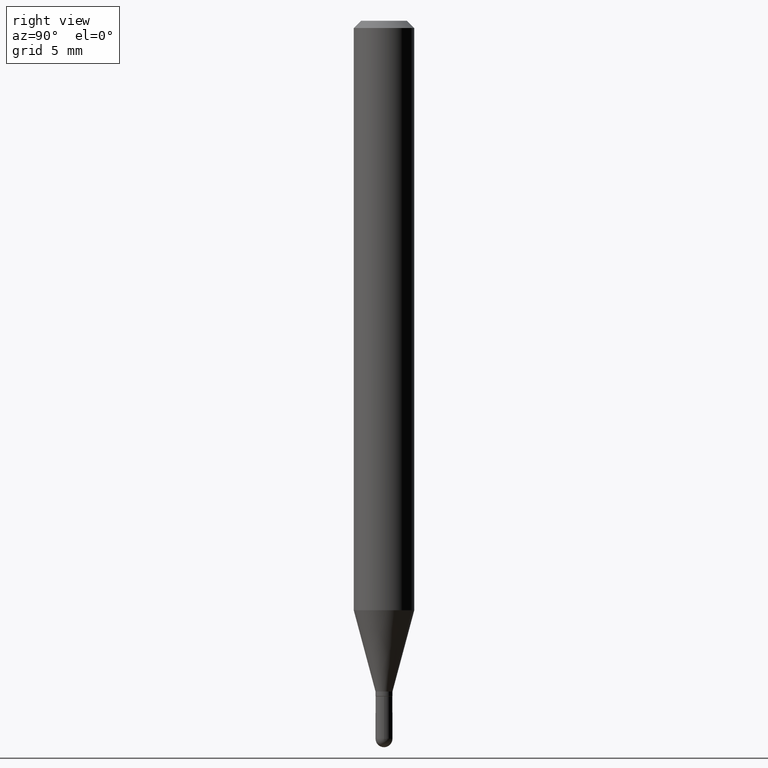
[diagram: clean part render]
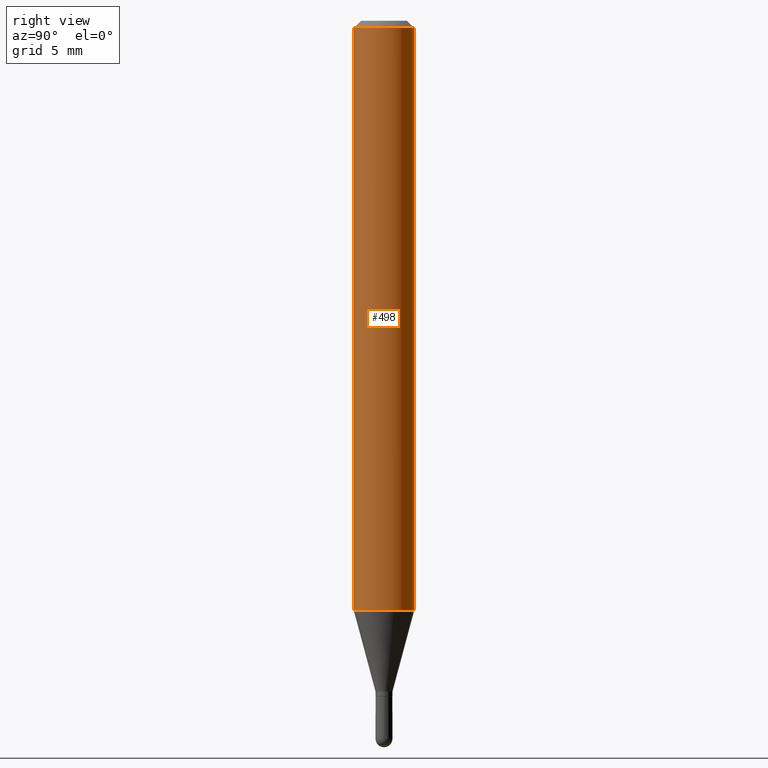
[diagram: same view with one face highlighted and labeled with its STEP entity id]
A machine part, right view. The second image highlights one B-rep face of the part: STEP entity #498.
In plain terms, the highlighted cylindrical surface (edge-blend (fillet) strip) has radius 1.5875 mm, axis along (-0, 0, 1).
Its self-contained STEP definition (entity closure, byte-faithful):
#4 = LINE ( 'NONE', #283, #213 ) ;
#11 = DIRECTION ( 'NONE',  ( -2.445470767023835515E-29, 3.491478530810524954E-15, 1.000000000000000000 ) ) ;
#18 = EDGE_LOOP ( 'NONE', ( #401, #287, #233, #82 ) ) ;
#26 = CARTESIAN_POINT ( 'NONE',  ( 3.668206150535694734E-31, -5.237217796215704281E-17, -0.01499999999999976179 ) ) ;
#29 = AXIS2_PLACEMENT_3D ( 'NONE', #399, #11, #494 ) ;
#32 = EDGE_CURVE ( 'NONE', #159, #374, #44, .T. ) ;
#38 = CARTESIAN_POINT ( 'NONE',  ( -4.364351673553916201E-16, -0.06250000000000000000, 2.182174081756577850E-16 ) ) ;
#44 = CIRCLE ( 'NONE', #144, 0.06250000000000000000 ) ;
#52 = EDGE_CURVE ( 'NONE', #412, #210, #445, .T. ) ;
#60 = AXIS2_PLACEMENT_3D ( 'NONE', #250, #324, #328 ) ;
#80 = LINE ( 'NONE', #38, #281 ) ;
#82 = ORIENTED_EDGE ( 'NONE', *, *, #459, .F. ) ;
#137 = CARTESIAN_POINT ( 'NONE',  ( 4.440892098500920998E-16, 0.06249999999999572564, -1.217057713659400964 ) ) ;
#144 = AXIS2_PLACEMENT_3D ( 'NONE', #26, #183, #348 ) ;
#159 = VERTEX_POINT ( 'NONE', #367 ) ;
#183 = DIRECTION ( 'NONE',  ( -2.445470767023835515E-29, 3.491478530810524954E-15, 1.000000000000000000 ) ) ;
#197 = EDGE_CURVE ( 'NONE', #210, #374, #4, .T. ) ;
#210 = VERTEX_POINT ( 'NONE', #137 ) ;
#213 = VECTOR ( 'NONE', #438, 39.37007874015748143 ) ;
#233 = ORIENTED_EDGE ( 'NONE', *, *, #32, .F. ) ;
#241 = DIRECTION ( 'NONE',  ( -2.445470767023835515E-29, 3.491478530810524954E-15, 1.000000000000000000 ) ) ;
#250 = CARTESIAN_POINT ( 'NONE',  ( 0.000000000000000000, 0.000000000000000000, 0.000000000000000000 ) ) ;
#281 = VECTOR ( 'NONE', #241, 39.37007874015748143 ) ;
#283 = CARTESIAN_POINT ( 'NONE',  ( 4.440892098500625669E-16, 0.06250000000000000000, -2.182174081756577850E-16 ) ) ;
#287 = ORIENTED_EDGE ( 'NONE', *, *, #197, .T. ) ;
#324 = DIRECTION ( 'NONE',  ( -2.445470767023835515E-29, 3.491478530810524954E-15, 1.000000000000000000 ) ) ;
#326 = CARTESIAN_POINT ( 'NONE',  ( 4.440892098500924943E-16, 0.06249999999999993755, -0.01499999999999997863 ) ) ;
#328 = DIRECTION ( 'NONE',  ( -6.982962677686265922E-15, -1.000000000000000000, 3.491478530810524560E-15 ) ) ;
#348 = DIRECTION ( 'NONE',  ( -6.982962677686265922E-15, -1.000000000000000000, 3.483106191921935554E-15 ) ) ;
#359 = FACE_OUTER_BOUND ( 'NONE', #18, .T. ) ;
#367 = CARTESIAN_POINT ( 'NONE',  ( -4.364351673553912750E-16, -0.06250000000000005551, -0.01499999999999954321 ) ) ;
#374 = VERTEX_POINT ( 'NONE', #326 ) ;
#391 = CYLINDRICAL_SURFACE ( 'NONE', #60, 0.06250000000000000000 ) ;
#399 = CARTESIAN_POINT ( 'NONE',  ( 2.976279060534930042E-29, -4.249330877999140897E-15, -1.217057713659400742 ) ) ;
#401 = ORIENTED_EDGE ( 'NONE', *, *, #52, .T. ) ;
#412 = VERTEX_POINT ( 'NONE', #477 ) ;
#438 = DIRECTION ( 'NONE',  ( -2.445470767023835515E-29, 3.491478530810524954E-15, 1.000000000000000000 ) ) ;
#445 = CIRCLE ( 'NONE', #29, 0.06250000000000000000 ) ;
#459 = EDGE_CURVE ( 'NONE', #412, #159, #80, .T. ) ;
#477 = CARTESIAN_POINT ( 'NONE',  ( -4.364351673553618899E-16, -0.06250000000000427436, -1.217057713659400520 ) ) ;
#494 = DIRECTION ( 'NONE',  ( -6.982962677686265922E-15, -1.000000000000000000, 4.370956789862821150E-15 ) ) ;
#498 = ADVANCED_FACE ( 'NONE', ( #359 ), #391, .T. ) ;